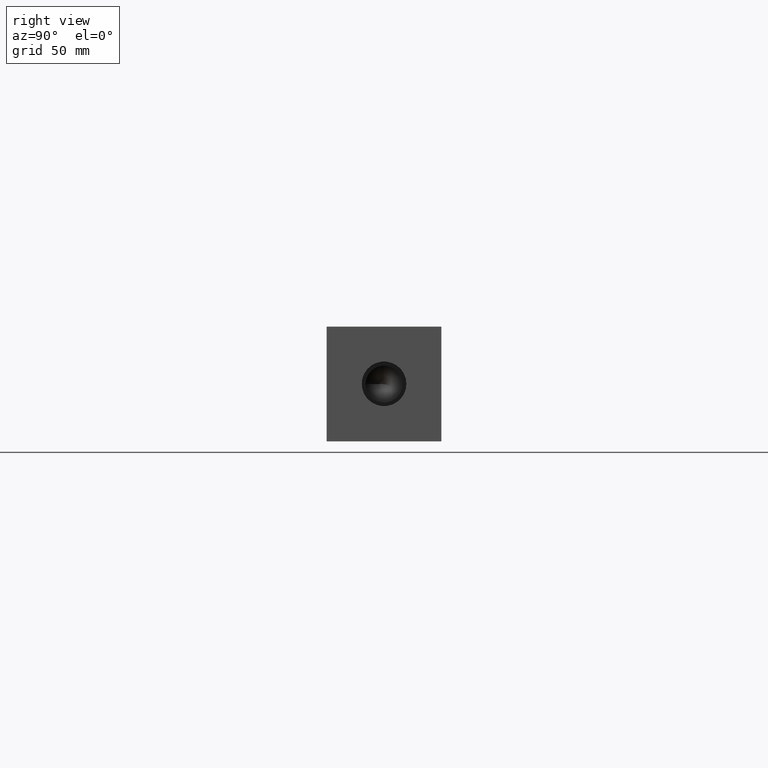
[diagram: clean part render]
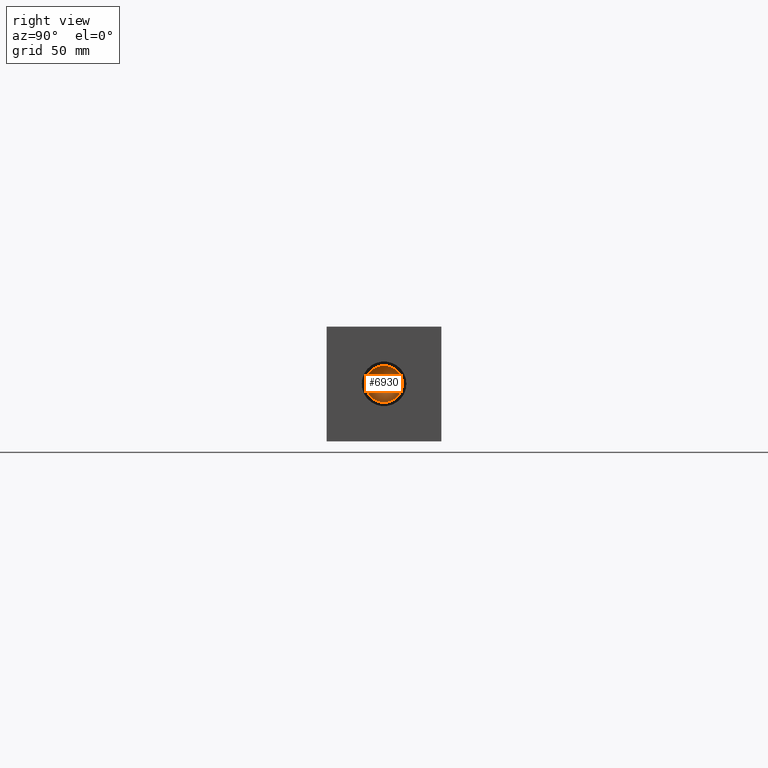
[diagram: same view with one face highlighted and labeled with its STEP entity id]
A machine part, right view. The second image highlights one B-rep face of the part: STEP entity #6930.
In plain terms, the highlighted conical surface has half-angle 60 deg.
Its self-contained STEP definition (entity closure, byte-faithful):
#20=CONICAL_SURFACE('',#7273,3.57505,1.0471975511966);
#122=CIRCLE('',#7274,7.1501);
#123=CIRCLE('',#7275,7.1501);
#753=FACE_OUTER_BOUND('',#1150,.T.);
#1150=EDGE_LOOP('',(#6130,#6131,#6132,#6133));
#1837=LINE('',#11784,#2511);
#2511=VECTOR('',#8597,3.57505);
#3335=VERTEX_POINT('',#11780);
#3336=VERTEX_POINT('',#11781);
#3337=VERTEX_POINT('',#11783);
#4277=EDGE_CURVE('',#3335,#3336,#122,.T.);
#4278=EDGE_CURVE('',#3336,#3337,#1837,.T.);
#4279=EDGE_CURVE('',#3336,#3335,#123,.T.);
#6130=ORIENTED_EDGE('',*,*,#4277,.T.);
#6131=ORIENTED_EDGE('',*,*,#4278,.T.);
#6132=ORIENTED_EDGE('',*,*,#4278,.F.);
#6133=ORIENTED_EDGE('',*,*,#4279,.T.);
#6930=ADVANCED_FACE('',(#753),#20,.F.);
#7273=AXIS2_PLACEMENT_3D('',#11779,#8593,#8594);
#7274=AXIS2_PLACEMENT_3D('',#11782,#8595,#8596);
#7275=AXIS2_PLACEMENT_3D('',#11785,#8598,#8599);
#8593=DIRECTION('center_axis',(1.,0.,0.));
#8594=DIRECTION('ref_axis',(0.,1.,0.));
#8595=DIRECTION('center_axis',(1.,0.,0.));
#8596=DIRECTION('ref_axis',(0.,1.,0.));
#8597=DIRECTION('',(-0.5,0.866025403784438,1.06057523872491E-16));
#8598=DIRECTION('center_axis',(1.,0.,0.));
#8599=DIRECTION('ref_axis',(0.,1.,0.));
#11779=CARTESIAN_POINT('Origin',(262.013333920134,22.225,22.225));
#11780=CARTESIAN_POINT('',(264.07739,29.3751,22.225));
#11781=CARTESIAN_POINT('',(264.07739,15.0749,22.225));
#11782=CARTESIAN_POINT('Origin',(264.07739,22.225,22.225));
#11783=CARTESIAN_POINT('',(259.949277840267,22.225,22.225));
#11784=CARTESIAN_POINT('',(262.013333920134,18.64995,22.225));
#11785=CARTESIAN_POINT('Origin',(264.07739,22.225,22.225));